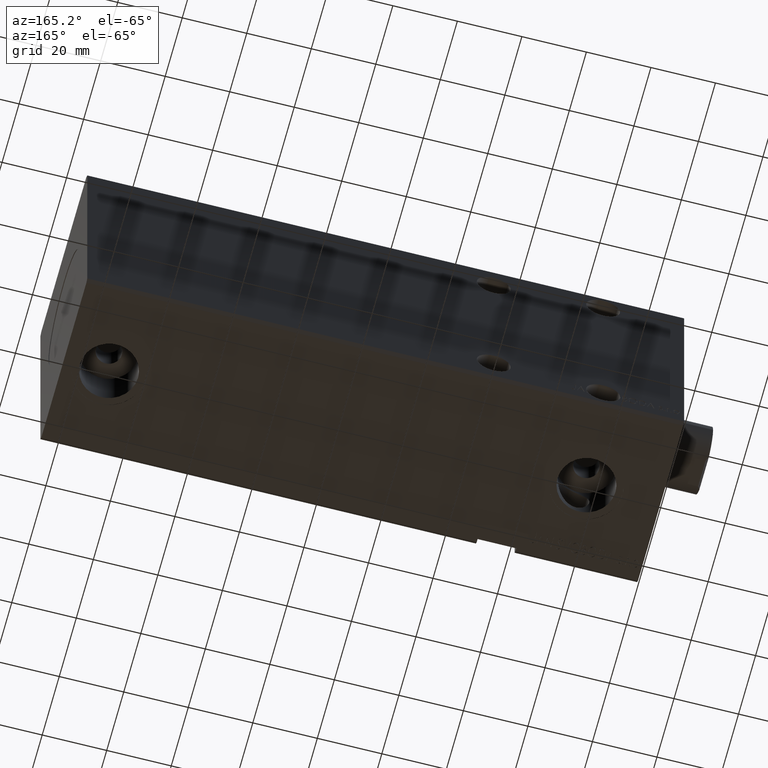
[diagram: clean part render]
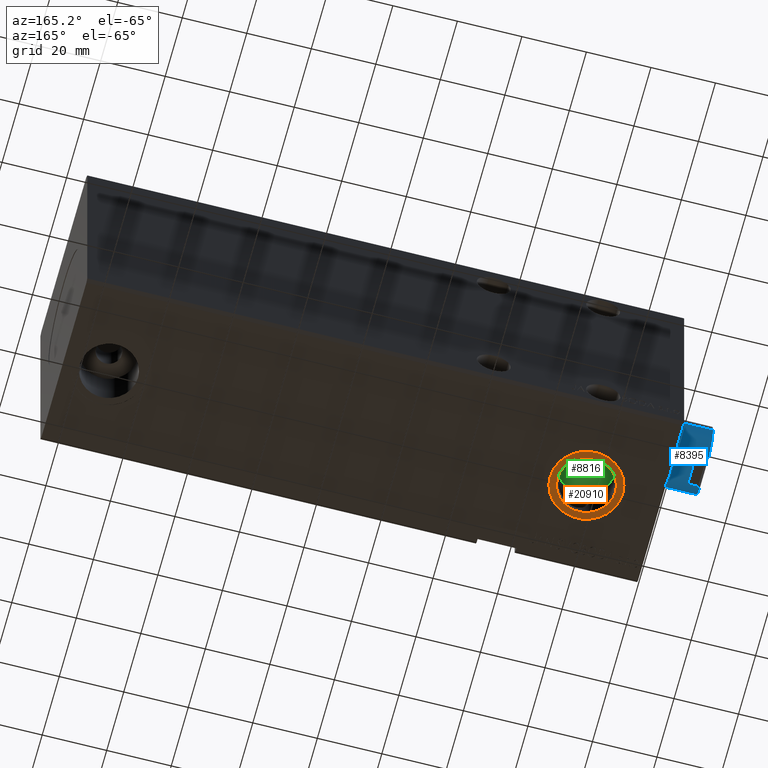
[diagram: same view with three faces highlighted in distinct colors, each labeled with its STEP entity id]
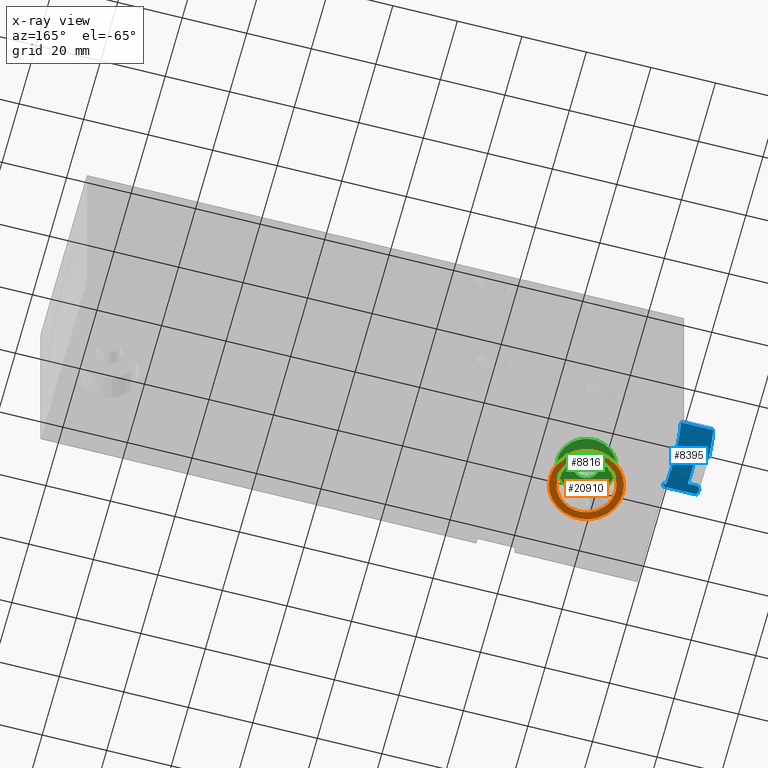
[diagram: x-ray of the same camera — body ghosted, the three highlighted faces saturated]
A machine part, auxiliary view with three faces highlighted in distinct colors.
The next image is the same camera in x-ray (body ghosted, the three faces saturated) — at least one of them is partly hidden behind the body in this view.
Their STEP definitions:

[orange] entity #20910 — the highlighted planar face has unit normal (0, 0, -1).
#765 = AXIS2_PLACEMENT_3D ( 'NONE', #36590, #9218, #6420 ) ;
#1020 = DIRECTION ( 'NONE',  ( 0.000000000000000000, 0.000000000000000000, -1.000000000000000000 ) ) ;
#1617 = CARTESIAN_POINT ( 'NONE',  ( 0.000000000000000000, 0.000000000000000000, -37.39999999999999147 ) ) ;
#1737 = DIRECTION ( 'NONE',  ( -1.000000000000000000, 0.000000000000000000, 0.000000000000000000 ) ) ;
#2094 = AXIS2_PLACEMENT_3D ( 'NONE', #30413, #36581, #39397 ) ;
#3961 = VERTEX_POINT ( 'NONE', #33332 ) ;
#5339 = VERTEX_POINT ( 'NONE', #11875 ) ;
#6420 = DIRECTION ( 'NONE',  ( -1.000000000000000000, 0.000000000000000000, 0.000000000000000000 ) ) ;
#7931 = DIRECTION ( 'NONE',  ( 0.000000000000000000, 0.000000000000000000, -1.000000000000000000 ) ) ;
#9218 = DIRECTION ( 'NONE',  ( 0.000000000000000000, 0.000000000000000000, -1.000000000000000000 ) ) ;
#10207 = EDGE_CURVE ( 'NONE', #32774, #5339, #19314, .T. ) ;
#11815 = AXIS2_PLACEMENT_3D ( 'NONE', #1617, #1020, #34790 ) ;
#11875 = CARTESIAN_POINT ( 'NONE',  ( 11.74999999999999822, -3.533115609439951465E-15, -37.39999999999999147 ) ) ;
#12233 = AXIS2_PLACEMENT_3D ( 'NONE', #32122, #7931, #1737 ) ;
#13812 = FACE_BOUND ( 'NONE', #16624, .T. ) ;
#14330 = ORIENTED_EDGE ( 'NONE', *, *, #31648, .T. ) ;
#16253 = AXIS2_PLACEMENT_3D ( 'NONE', #38590, #32016, #23428 ) ;
#16624 = EDGE_LOOP ( 'NONE', ( #22511, #29021 ) ) ;
#17107 = EDGE_CURVE ( 'NONE', #3961, #26766, #23963, .T. ) ;
#18006 = CIRCLE ( 'NONE', #765, 9.000000000000000000 ) ;
#19314 = CIRCLE ( 'NONE', #2094, 11.25000000000000178 ) ;
#20910 = ADVANCED_FACE ( 'NONE', ( #13812, #35186 ), #32202, .T. ) ;
#22511 = ORIENTED_EDGE ( 'NONE', *, *, #17107, .F. ) ;
#23428 = DIRECTION ( 'NONE',  ( -1.000000000000000000, 0.000000000000000000, 0.000000000000000000 ) ) ;
#23709 = CIRCLE ( 'NONE', #12233, 11.25000000000000178 ) ;
#23833 = CARTESIAN_POINT ( 'NONE',  ( 34.25000000000000000, -2.155387960399179471E-15, -37.39999999999999147 ) ) ;
#23963 = CIRCLE ( 'NONE', #16253, 9.000000000000000000 ) ;
#24059 = EDGE_CURVE ( 'NONE', #26766, #3961, #18006, .T. ) ;
#25742 = ORIENTED_EDGE ( 'NONE', *, *, #10207, .T. ) ;
#26766 = VERTEX_POINT ( 'NONE', #36316 ) ;
#28819 = EDGE_LOOP ( 'NONE', ( #14330, #25742 ) ) ;
#29021 = ORIENTED_EDGE ( 'NONE', *, *, #24059, .F. ) ;
#30413 = CARTESIAN_POINT ( 'NONE',  ( 23.00000000000000000, -3.533115609439951465E-15, -37.39999999999999147 ) ) ;
#31648 = EDGE_CURVE ( 'NONE', #5339, #32774, #23709, .T. ) ;
#32016 = DIRECTION ( 'NONE',  ( 0.000000000000000000, 0.000000000000000000, -1.000000000000000000 ) ) ;
#32122 = CARTESIAN_POINT ( 'NONE',  ( 23.00000000000000000, -3.533115609439951465E-15, -37.39999999999999147 ) ) ;
#32202 = PLANE ( 'NONE',  #11815 ) ;
#32774 = VERTEX_POINT ( 'NONE', #23833 ) ;
#33332 = CARTESIAN_POINT ( 'NONE',  ( 14.00000000000000000, -3.533115609439951465E-15, -37.39999999999999147 ) ) ;
#34790 = DIRECTION ( 'NONE',  ( -1.000000000000000000, 0.000000000000000000, -0.000000000000000000 ) ) ;
#35186 = FACE_OUTER_BOUND ( 'NONE', #28819, .T. ) ;
#36316 = CARTESIAN_POINT ( 'NONE',  ( 32.00000000000000000, -2.430933490207333949E-15, -37.39999999999999147 ) ) ;
#36581 = DIRECTION ( 'NONE',  ( 0.000000000000000000, 0.000000000000000000, -1.000000000000000000 ) ) ;
#36590 = CARTESIAN_POINT ( 'NONE',  ( 23.00000000000000000, -3.533115609439951465E-15, -37.39999999999999147 ) ) ;
#38590 = CARTESIAN_POINT ( 'NONE',  ( 23.00000000000000000, -3.533115609439951465E-15, -37.39999999999999147 ) ) ;
#39397 = DIRECTION ( 'NONE',  ( -1.000000000000000000, 0.000000000000000000, 0.000000000000000000 ) ) ;

[blue] entity #8395 — the highlighted cylindrical surface (edge-blend (fillet) strip) has radius 10.46 mm, axis along (-1, -0, -0).
#744 = VERTEX_POINT ( 'NONE', #6425 ) ;
#1251 = FACE_OUTER_BOUND ( 'NONE', #38943, .T. ) ;
#2986 = VERTEX_POINT ( 'NONE', #6049 ) ;
#3295 = VECTOR ( 'NONE', #25206, 1000.000000000000000 ) ;
#3337 = DIRECTION ( 'NONE',  ( 0.000000000000000000, -1.000000000000000000, 0.000000000000000000 ) ) ;
#3347 = CARTESIAN_POINT ( 'NONE',  ( 1.280980551908131527E-15, 10.45999999999996888, 168.5000000000000000 ) ) ;
#3490 = ORIENTED_EDGE ( 'NONE', *, *, #9431, .T. ) ;
#3501 = CARTESIAN_POINT ( 'NONE',  ( -8.790000000000025793, -5.669876541865786379, 168.5000000000000000 ) ) ;
#3676 = CARTESIAN_POINT ( 'NONE',  ( 0.000000000000000000, -3.085170633587695342E-14, 168.5000000000000000 ) ) ;
#4044 = CIRCLE ( 'NONE', #19364, 10.46000000000000085 ) ;
#4053 = DIRECTION ( 'NONE',  ( 0.000000000000000000, -1.000000000000000000, 0.000000000000000000 ) ) ;
#5546 = CARTESIAN_POINT ( 'NONE',  ( -9.293949384395547852, 4.824575729748583619, 167.9960506156045312 ) ) ;
#6049 = CARTESIAN_POINT ( 'NONE',  ( -9.500000000000000000, -4.377396486497457495, 164.5000000000000000 ) ) ;
#6425 = CARTESIAN_POINT ( 'NONE',  ( -8.790000000000025793, -5.669876541865786379, 168.5000000000000000 ) ) ;
#6594 = EDGE_CURVE ( 'NONE', #33279, #33249, #17719, .T. ) ;
#6751 = VECTOR ( 'NONE', #9557, 1000.000000000000000 ) ;
#7139 = CARTESIAN_POINT ( 'NONE',  ( -9.500000000000000000, 4.377396486497395323, 167.7900000000000489 ) ) ;
#8395 = ADVANCED_FACE ( 'NONE', ( #1251 ), #31241, .T. ) ;
#8886 = EDGE_CURVE ( 'NONE', #744, #10214, #28676, .T. ) ;
#8919 = VERTEX_POINT ( 'NONE', #33491 ) ;
#9016 = DIRECTION ( 'NONE',  ( -0.000000000000000000, -1.830961800348780351E-16, 1.000000000000000000 ) ) ;
#9055 = AXIS2_PLACEMENT_3D ( 'NONE', #20839, #9016, #14433 ) ;
#9431 = EDGE_CURVE ( 'NONE', #25164, #30307, #21986, .T. ) ;
#9557 = DIRECTION ( 'NONE',  ( -0.000000000000000000, -1.830961800348780351E-16, 1.000000000000000000 ) ) ;
#9720 = DIRECTION ( 'NONE',  ( -0.000000000000000000, -1.830961800348780351E-16, 1.000000000000000000 ) ) ;
#9744 = DIRECTION ( 'NONE',  ( -0.000000000000000000, -1.830961800348780351E-16, 1.000000000000000000 ) ) ;
#10214 = VERTEX_POINT ( 'NONE', #18411 ) ;
#10650 = CARTESIAN_POINT ( 'NONE',  ( 1.314046015485110656E-15, -10.46000000000002750, 158.5000000000000000 ) ) ;
#11014 = CARTESIAN_POINT ( 'NONE',  ( 0.000000000000000000, -3.011932161573743842E-14, 164.5000000000000000 ) ) ;
#11534 = CARTESIAN_POINT ( 'NONE',  ( -9.500000000000000000, 4.377396486497395323, 167.7900000000000489 ) ) ;
#12302 = ORIENTED_EDGE ( 'NONE', *, *, #22706, .F. ) ;
#12303 = CARTESIAN_POINT ( 'NONE',  ( -9.500000000000000000, -4.377396486497458383, 167.7900000000000489 ) ) ;
#14433 = DIRECTION ( 'NONE',  ( 0.000000000000000000, -1.000000000000000000, 0.000000000000000000 ) ) ;
#14799 = ORIENTED_EDGE ( 'NONE', *, *, #30017, .F. ) ;
#15218 = LINE ( 'NONE', #31187, #3295 ) ;
#15692 = CARTESIAN_POINT ( 'NONE',  ( -9.056889589612573843, -5.256118063110211125, 168.2331104103874964 ) ) ;
#16328 = LINE ( 'NONE', #18939, #6751 ) ;
#16330 = CIRCLE ( 'NONE', #38020, 10.46000000000000085 ) ;
#16754 = AXIS2_PLACEMENT_3D ( 'NONE', #3676, #19231, #4053 ) ;
#16813 = EDGE_CURVE ( 'NONE', #19650, #25164, #36032, .T. ) ;
#17336 = VECTOR ( 'NONE', #37116, 1000.000000000000000 ) ;
#17719 =( BOUNDED_CURVE ( )  B_SPLINE_CURVE ( 3, ( #11534, #5546, #27136, #30314 ),
 .UNSPECIFIED., .F., .F. ) 
 B_SPLINE_CURVE_WITH_KNOTS ( ( 4, 4 ),
 ( 3.573373807102883770, 3.714471135698162563 ),
 .UNSPECIFIED. ) 
 CURVE ( )  GEOMETRIC_REPRESENTATION_ITEM ( )  RATIONAL_B_SPLINE_CURVE ( ( 1.000000000000000000, 0.9983416499762386431, 0.9983416499762386431, 1.000000000000000000 ) ) 
 REPRESENTATION_ITEM ( '' )  );
#18411 = CARTESIAN_POINT ( 'NONE',  ( -9.500000000000000000, -4.377396486497458383, 167.7900000000000489 ) ) ;
#18543 = DIRECTION ( 'NONE',  ( 0.000000000000000000, -1.000000000000000000, 0.000000000000000000 ) ) ;
#18939 = CARTESIAN_POINT ( 'NONE',  ( 1.280980551908131527E-15, 10.45999999999996888, 168.5000000000000000 ) ) ;
#18950 = CARTESIAN_POINT ( 'NONE',  ( -9.500000000000000000, 4.377396486497395323, 168.5000000000000000 ) ) ;
#19231 = DIRECTION ( 'NONE',  ( -0.000000000000000000, -1.830961800348780351E-16, 1.000000000000000000 ) ) ;
#19364 = AXIS2_PLACEMENT_3D ( 'NONE', #33719, #9720, #3337 ) ;
#19439 = CARTESIAN_POINT ( 'NONE',  ( 0.000000000000000000, 10.45999999999996888, 158.5000000000000000 ) ) ;
#19575 = CARTESIAN_POINT ( 'NONE',  ( 0.000000000000000000, -10.46000000000003105, 168.5000000000000000 ) ) ;
#19650 = VERTEX_POINT ( 'NONE', #19439 ) ;
#20791 = ORIENTED_EDGE ( 'NONE', *, *, #38268, .F. ) ;
#20839 = CARTESIAN_POINT ( 'NONE',  ( 0.000000000000000000, -3.085170633587695342E-14, 168.5000000000000000 ) ) ;
#21451 = AXIS2_PLACEMENT_3D ( 'NONE', #37100, #9744, #18543 ) ;
#21986 = LINE ( 'NONE', #19575, #32114 ) ;
#22706 = EDGE_CURVE ( 'NONE', #19650, #27597, #16328, .T. ) ;
#22816 = DIRECTION ( 'NONE',  ( 0.000000000000000000, 0.000000000000000000, 1.000000000000000000 ) ) ;
#22929 = ORIENTED_EDGE ( 'NONE', *, *, #8886, .T. ) ;
#24309 = CARTESIAN_POINT ( 'NONE',  ( -9.293949384395544300, -4.824575729748650232, 167.9960506156045312 ) ) ;
#25164 = VERTEX_POINT ( 'NONE', #10650 ) ;
#25206 = DIRECTION ( 'NONE',  ( 0.000000000000000000, 1.830961800348780351E-16, -1.000000000000000000 ) ) ;
#27136 = CARTESIAN_POINT ( 'NONE',  ( -9.056889589612575620, 5.256118063110147176, 168.2331104103874964 ) ) ;
#27597 = VERTEX_POINT ( 'NONE', #3347 ) ;
#28676 =( BOUNDED_CURVE ( )  B_SPLINE_CURVE ( 3, ( #3501, #15692, #24309, #12303 ),
 .UNSPECIFIED., .F., .F. ) 
 B_SPLINE_CURVE_WITH_KNOTS ( ( 4, 4 ),
 ( 2.568714171481423669, 2.709811500076702018 ),
 .UNSPECIFIED. ) 
 CURVE ( )  GEOMETRIC_REPRESENTATION_ITEM ( )  RATIONAL_B_SPLINE_CURVE ( ( 1.000000000000000000, 0.9983416499762386431, 0.9983416499762386431, 1.000000000000000000 ) ) 
 REPRESENTATION_ITEM ( '' )  );
#30017 = EDGE_CURVE ( 'NONE', #8919, #2986, #16330, .T. ) ;
#30307 = VERTEX_POINT ( 'NONE', #33347 ) ;
#30314 = CARTESIAN_POINT ( 'NONE',  ( -8.790000000000025793, 5.669876541865724207, 168.5000000000000000 ) ) ;
#30845 = ORIENTED_EDGE ( 'NONE', *, *, #32987, .T. ) ;
#30953 = CARTESIAN_POINT ( 'NONE',  ( -8.790000000000025793, 5.669876541865724207, 168.5000000000000000 ) ) ;
#31187 = CARTESIAN_POINT ( 'NONE',  ( -9.500000000000000000, -4.377396486497458383, 168.5000000000000000 ) ) ;
#31241 = CYLINDRICAL_SURFACE ( 'NONE', #16754, 10.46000000000000085 ) ;
#31420 = ORIENTED_EDGE ( 'NONE', *, *, #16813, .T. ) ;
#32114 = VECTOR ( 'NONE', #37345, 1000.000000000000000 ) ;
#32807 = DIRECTION ( 'NONE',  ( 1.000000000000000000, 0.000000000000000000, 0.000000000000000000 ) ) ;
#32893 = EDGE_CURVE ( 'NONE', #744, #30307, #33934, .T. ) ;
#32987 = EDGE_CURVE ( 'NONE', #10214, #2986, #15218, .T. ) ;
#33211 = EDGE_CURVE ( 'NONE', #8919, #33279, #35956, .T. ) ;
#33249 = VERTEX_POINT ( 'NONE', #30953 ) ;
#33279 = VERTEX_POINT ( 'NONE', #7139 ) ;
#33347 = CARTESIAN_POINT ( 'NONE',  ( 0.000000000000000000, -10.46000000000003105, 168.5000000000000000 ) ) ;
#33491 = CARTESIAN_POINT ( 'NONE',  ( -9.500000000000000000, 4.377396486497396211, 164.5000000000000000 ) ) ;
#33719 = CARTESIAN_POINT ( 'NONE',  ( 0.000000000000000000, -3.085170633587695342E-14, 168.5000000000000000 ) ) ;
#33934 = CIRCLE ( 'NONE', #9055, 10.46000000000000085 ) ;
#35947 = ORIENTED_EDGE ( 'NONE', *, *, #32893, .F. ) ;
#35956 = LINE ( 'NONE', #18950, #17336 ) ;
#36032 = CIRCLE ( 'NONE', #21451, 10.45999999999999908 ) ;
#36616 = ORIENTED_EDGE ( 'NONE', *, *, #33211, .T. ) ;
#37100 = CARTESIAN_POINT ( 'NONE',  ( 0.000000000000000000, -2.902074453552816907E-14, 158.5000000000000000 ) ) ;
#37116 = DIRECTION ( 'NONE',  ( -0.000000000000000000, -1.830961800348780351E-16, 1.000000000000000000 ) ) ;
#37345 = DIRECTION ( 'NONE',  ( -0.000000000000000000, -1.830961800348780351E-16, 1.000000000000000000 ) ) ;
#38020 = AXIS2_PLACEMENT_3D ( 'NONE', #11014, #22816, #32807 ) ;
#38268 = EDGE_CURVE ( 'NONE', #27597, #33249, #4044, .T. ) ;
#38943 = EDGE_LOOP ( 'NONE', ( #12302, #31420, #3490, #35947, #22929, #30845, #14799, #36616, #39151, #20791 ) ) ;
#39151 = ORIENTED_EDGE ( 'NONE', *, *, #6594, .T. ) ;

[green] entity #8816 — the highlighted planar face has unit normal (0, 0, -1).
#112 = DIRECTION ( 'NONE',  ( 0.000000000000000000, 0.000000000000000000, -1.000000000000000000 ) ) ;
#278 = CARTESIAN_POINT ( 'NONE',  ( 23.00000000000000000, -3.533115609439951465E-15, -23.79999999999998650 ) ) ;
#1222 = DIRECTION ( 'NONE',  ( 0.000000000000000000, 0.000000000000000000, -1.000000000000000000 ) ) ;
#4185 = VERTEX_POINT ( 'NONE', #11509 ) ;
#5104 = AXIS2_PLACEMENT_3D ( 'NONE', #28615, #1222, #13409 ) ;
#5610 = EDGE_CURVE ( 'NONE', #4185, #30159, #15938, .T. ) ;
#5892 = DIRECTION ( 'NONE',  ( -1.000000000000000000, 0.000000000000000000, 0.000000000000000000 ) ) ;
#6296 = FACE_OUTER_BOUND ( 'NONE', #32926, .T. ) ;
#6492 = CARTESIAN_POINT ( 'NONE',  ( 23.00000000000000000, -3.533115609439951465E-15, -23.79999999999998650 ) ) ;
#6798 = CARTESIAN_POINT ( 'NONE',  ( 27.00000000000000000, -3.043256889781010873E-15, -23.79999999999998650 ) ) ;
#7542 = EDGE_CURVE ( 'NONE', #10793, #36069, #12287, .T. ) ;
#7677 = ORIENTED_EDGE ( 'NONE', *, *, #5610, .F. ) ;
#8777 = ORIENTED_EDGE ( 'NONE', *, *, #35195, .F. ) ;
#8816 = ADVANCED_FACE ( 'NONE', ( #33874, #6296 ), #18883, .T. ) ;
#9465 = DIRECTION ( 'NONE',  ( -1.000000000000000000, 0.000000000000000000, 0.000000000000000000 ) ) ;
#9734 = AXIS2_PLACEMENT_3D ( 'NONE', #39327, #20551, #35718 ) ;
#10793 = VERTEX_POINT ( 'NONE', #17138 ) ;
#11509 = CARTESIAN_POINT ( 'NONE',  ( 19.00000000000000000, -3.533115609439951465E-15, -23.79999999999998650 ) ) ;
#12287 = CIRCLE ( 'NONE', #34595, 9.000000000000000000 ) ;
#12346 = AXIS2_PLACEMENT_3D ( 'NONE', #18083, #36829, #9465 ) ;
#13409 = DIRECTION ( 'NONE',  ( -1.000000000000000000, 0.000000000000000000, 0.000000000000000000 ) ) ;
#14369 = ORIENTED_EDGE ( 'NONE', *, *, #36358, .T. ) ;
#15532 = AXIS2_PLACEMENT_3D ( 'NONE', #6492, #112, #27315 ) ;
#15938 = CIRCLE ( 'NONE', #5104, 4.000000000000000000 ) ;
#17138 = CARTESIAN_POINT ( 'NONE',  ( 14.00000000000000000, -3.533115609439951465E-15, -23.79999999999998650 ) ) ;
#18083 = CARTESIAN_POINT ( 'NONE',  ( 23.00000000000000000, -3.533115609439951465E-15, -23.79999999999998650 ) ) ;
#18883 = PLANE ( 'NONE',  #15532 ) ;
#20337 = CARTESIAN_POINT ( 'NONE',  ( 32.00000000000000000, -2.430933490207333949E-15, -23.79999999999998650 ) ) ;
#20551 = DIRECTION ( 'NONE',  ( 0.000000000000000000, 0.000000000000000000, -1.000000000000000000 ) ) ;
#21258 = ORIENTED_EDGE ( 'NONE', *, *, #7542, .T. ) ;
#27315 = DIRECTION ( 'NONE',  ( -1.000000000000000000, 0.000000000000000000, -0.000000000000000000 ) ) ;
#27475 = DIRECTION ( 'NONE',  ( 0.000000000000000000, 0.000000000000000000, -1.000000000000000000 ) ) ;
#28615 = CARTESIAN_POINT ( 'NONE',  ( 23.00000000000000000, -3.533115609439951465E-15, -23.79999999999998650 ) ) ;
#30159 = VERTEX_POINT ( 'NONE', #6798 ) ;
#32926 = EDGE_LOOP ( 'NONE', ( #21258, #14369 ) ) ;
#33874 = FACE_BOUND ( 'NONE', #35041, .T. ) ;
#34595 = AXIS2_PLACEMENT_3D ( 'NONE', #278, #27475, #5892 ) ;
#35041 = EDGE_LOOP ( 'NONE', ( #7677, #8777 ) ) ;
#35195 = EDGE_CURVE ( 'NONE', #30159, #4185, #39098, .T. ) ;
#35718 = DIRECTION ( 'NONE',  ( -1.000000000000000000, 0.000000000000000000, 0.000000000000000000 ) ) ;
#36069 = VERTEX_POINT ( 'NONE', #20337 ) ;
#36358 = EDGE_CURVE ( 'NONE', #36069, #10793, #37805, .T. ) ;
#36829 = DIRECTION ( 'NONE',  ( 0.000000000000000000, 0.000000000000000000, -1.000000000000000000 ) ) ;
#37805 = CIRCLE ( 'NONE', #12346, 9.000000000000000000 ) ;
#39098 = CIRCLE ( 'NONE', #9734, 4.000000000000000000 ) ;
#39327 = CARTESIAN_POINT ( 'NONE',  ( 23.00000000000000000, -3.533115609439951465E-15, -23.79999999999998650 ) ) ;